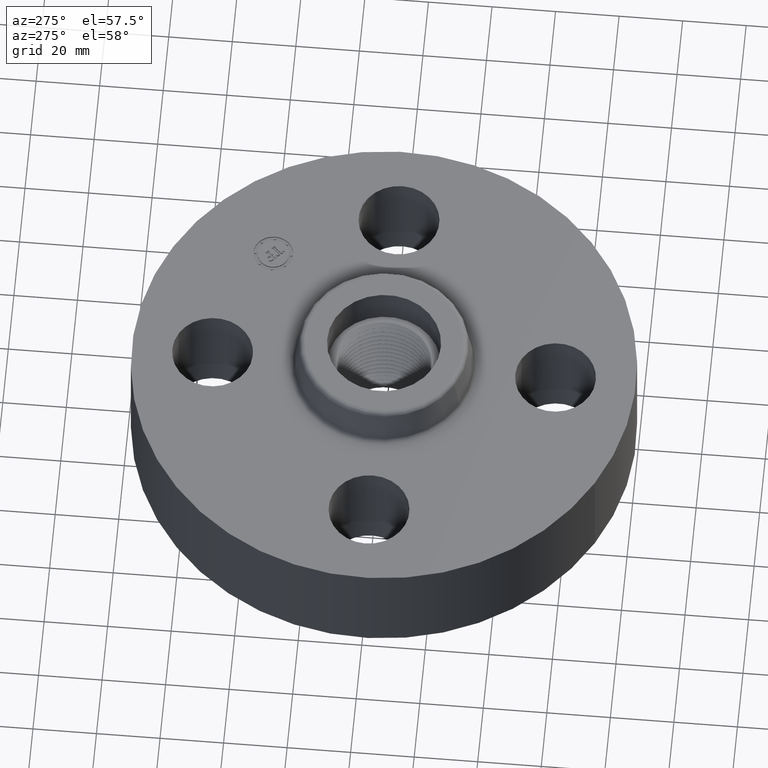
[diagram: clean part render]
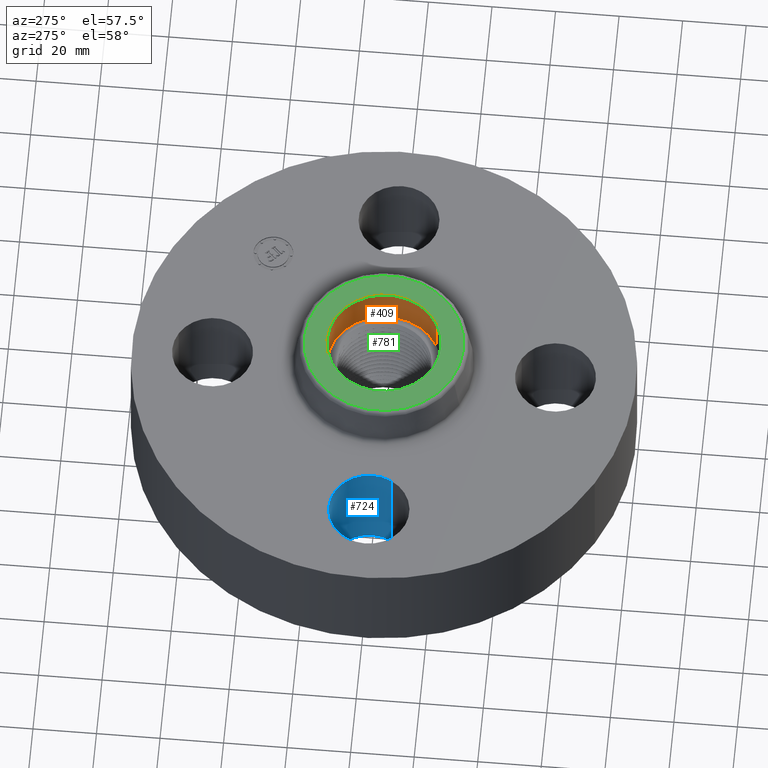
[diagram: same view with three faces highlighted in distinct colors, each labeled with its STEP entity id]
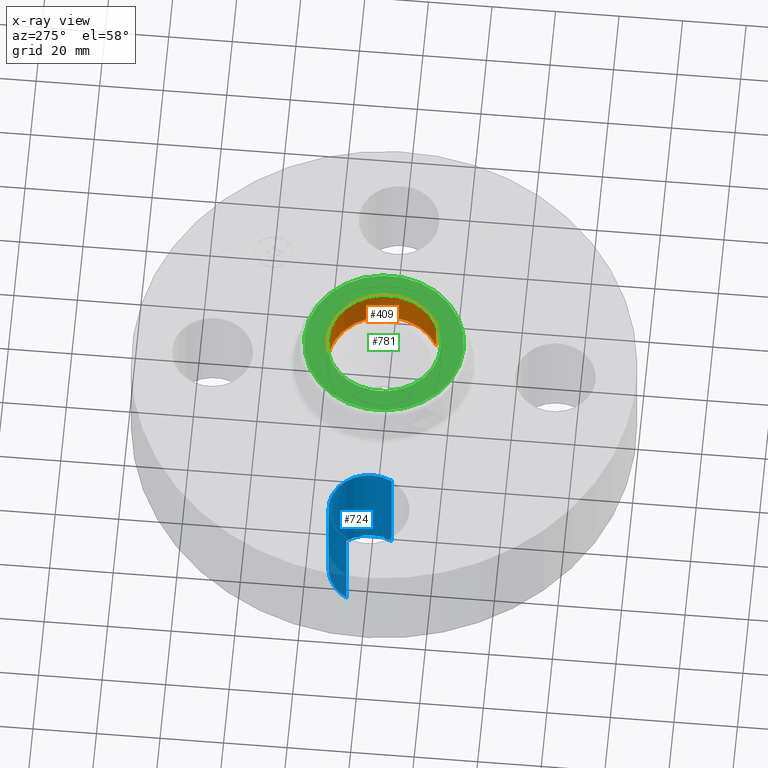
[diagram: x-ray of the same camera — body ghosted, the three highlighted faces saturated]
A machine part, auxiliary view with three faces highlighted in distinct colors.
The next image is the same camera in x-ray (body ghosted, the three faces saturated) — at least one of them is partly hidden behind the body in this view.
Their STEP definitions:

[orange] entity #409 — the highlighted cylindrical surface (partial cylindrical patch) has radius 17.907 mm, axis along (0, 0, 1).
#51=AXIS2_PLACEMENT_3D('Circle Axis2P3D',#49,#50,$) ;
#370=AXIS2_PLACEMENT_3D('Cylinder Axis2P3D',#367,#368,#369) ;
#400=AXIS2_PLACEMENT_3D('Circle Axis2P3D',#398,#399,$) ;
#44=CARTESIAN_POINT('Vertex',(-0.337995004717,0.618695706135,1.38000000001)) ;
#46=CARTESIAN_POINT('Vertex',(0.337995004717,-0.618695706135,1.38000000001)) ;
#49=CARTESIAN_POINT('Axis2P3D Location',(0.,0.,1.38000000001)) ;
#367=CARTESIAN_POINT('Axis2P3D Location',(0.,0.,1.38000000001)) ;
#376=CARTESIAN_POINT('Vertex',(0.337995004717,-0.618695706135,1.88000000001)) ;
#378=CARTESIAN_POINT('Vertex',(-0.337995004717,0.618695706135,1.88000000001)) ;
#381=CARTESIAN_POINT('Line Origine',(0.337995004717,-0.618695706135,1.63000000001)) ;
#386=CARTESIAN_POINT('Line Origine',(-0.337995004717,0.618695706135,1.63000000001)) ;
#398=CARTESIAN_POINT('Axis2P3D Location',(0.,0.,1.88000000001)) ;
#50=DIRECTION('Axis2P3D Direction',(0.,0.,-0.0393700787402)) ;
#368=DIRECTION('Axis2P3D Direction',(0.,0.,0.0393700787402)) ;
#369=DIRECTION('Axis2P3D XDirection',(0.0188750212049,-0.0345504945626,0.)) ;
#382=DIRECTION('Vector Direction',(0.,0.,0.0393700787402)) ;
#387=DIRECTION('Vector Direction',(0.,0.,0.0393700787402)) ;
#399=DIRECTION('Axis2P3D Direction',(0.,0.,0.0393700787402)) ;
#383=VECTOR('Line Direction',#382,0.0393700787402) ;
#388=VECTOR('Line Direction',#387,0.0393700787402) ;
#404=ORIENTED_EDGE('',*,*,#402,.F.) ;
#405=ORIENTED_EDGE('',*,*,#390,.F.) ;
#406=ORIENTED_EDGE('',*,*,#53,.F.) ;
#407=ORIENTED_EDGE('',*,*,#385,.T.) ;
#409=ADVANCED_FACE('PartBody',(#408),#371,.F.) ;
#52=CIRCLE('generated circle',#51,0.705000000003) ;
#401=CIRCLE('generated circle',#400,0.705000000003) ;
#371=CYLINDRICAL_SURFACE('generated cylinder',#370,0.705000000003) ;
#53=EDGE_CURVE('',#47,#45,#52,.F.) ;
#385=EDGE_CURVE('',#47,#377,#384,.T.) ;
#390=EDGE_CURVE('',#45,#379,#389,.T.) ;
#402=EDGE_CURVE('',#379,#377,#401,.F.) ;
#403=EDGE_LOOP('',(#404,#405,#406,#407)) ;
#408=FACE_OUTER_BOUND('',#403,.T.) ;
#384=LINE('Line',#381,#383) ;
#389=LINE('Line',#386,#388) ;
#45=VERTEX_POINT('',#44) ;
#47=VERTEX_POINT('',#46) ;
#377=VERTEX_POINT('',#376) ;
#379=VERTEX_POINT('',#378) ;

[blue] entity #724 — the highlighted cylindrical surface (partial cylindrical patch) has radius 12.7 mm, axis along (-0, 0, -1).
#341=AXIS2_PLACEMENT_3D('Circle Axis2P3D',#339,#340,$) ;
#685=AXIS2_PLACEMENT_3D('Cylinder Axis2P3D',#682,#683,#684) ;
#715=AXIS2_PLACEMENT_3D('Circle Axis2P3D',#713,#714,$) ;
#334=CARTESIAN_POINT('Vertex',(-1.68620871906,-0.239712769303,0.)) ;
#336=CARTESIAN_POINT('Vertex',(-2.56379128096,0.239712769303,0.)) ;
#339=CARTESIAN_POINT('Axis2P3D Location',(-2.12500000001,-2.09805925913E-016,0.)) ;
#682=CARTESIAN_POINT('Axis2P3D Location',(-2.12500000001,-2.6023744482E-016,1.37606299213)) ;
#687=CARTESIAN_POINT('Line Origine',(-1.68620871906,-0.239712769303,0.690000000003)) ;
#691=CARTESIAN_POINT('Vertex',(-1.68620871906,-0.239712769303,1.38000000001)) ;
#694=CARTESIAN_POINT('Line Origine',(-2.56379128096,0.239712769303,0.690000000003)) ;
#698=CARTESIAN_POINT('Vertex',(-2.56379128096,0.239712769303,1.38000000001)) ;
#713=CARTESIAN_POINT('Axis2P3D Location',(-2.12500000001,-2.6023744482E-016,1.38000000001)) ;
#340=DIRECTION('Axis2P3D Direction',(0.,0.,-0.0393700787402)) ;
#683=DIRECTION('Axis2P3D Direction',(-0.,0.,-0.0393700787402)) ;
#684=DIRECTION('Axis2P3D XDirection',(-0.0345504945626,0.0188750212049,0.)) ;
#688=DIRECTION('Vector Direction',(0.,0.,-0.0393700787402)) ;
#695=DIRECTION('Vector Direction',(0.,0.,-0.0393700787402)) ;
#714=DIRECTION('Axis2P3D Direction',(-0.,0.,-0.0393700787402)) ;
#689=VECTOR('Line Direction',#688,0.0393700787402) ;
#696=VECTOR('Line Direction',#695,0.0393700787402) ;
#719=ORIENTED_EDGE('',*,*,#700,.F.) ;
#720=ORIENTED_EDGE('',*,*,#343,.T.) ;
#721=ORIENTED_EDGE('',*,*,#693,.T.) ;
#722=ORIENTED_EDGE('',*,*,#717,.F.) ;
#724=ADVANCED_FACE('PartBody',(#723),#686,.F.) ;
#342=CIRCLE('generated circle',#341,0.500000000002) ;
#716=CIRCLE('generated circle',#715,0.500000000002) ;
#686=CYLINDRICAL_SURFACE('generated cylinder',#685,0.500000000002) ;
#343=EDGE_CURVE('',#337,#335,#342,.T.) ;
#693=EDGE_CURVE('',#335,#692,#690,.F.) ;
#700=EDGE_CURVE('',#337,#699,#697,.F.) ;
#717=EDGE_CURVE('',#699,#692,#716,.T.) ;
#718=EDGE_LOOP('',(#719,#720,#721,#722)) ;
#723=FACE_OUTER_BOUND('',#718,.T.) ;
#690=LINE('Line',#687,#689) ;
#697=LINE('Line',#694,#696) ;
#335=VERTEX_POINT('',#334) ;
#337=VERTEX_POINT('',#336) ;
#692=VERTEX_POINT('',#691) ;
#699=VERTEX_POINT('',#698) ;

[green] entity #781 — the highlighted planar face has unit normal (0, 0, -1).
#374=AXIS2_PLACEMENT_3D('Circle Axis2P3D',#372,#373,$) ;
#400=AXIS2_PLACEMENT_3D('Circle Axis2P3D',#398,#399,$) ;
#610=AXIS2_PLACEMENT_3D('Circle Axis2P3D',#608,#609,$) ;
#629=AXIS2_PLACEMENT_3D('Circle Axis2P3D',#627,#628,$) ;
#771=AXIS2_PLACEMENT_3D('Plane Axis2P3D',#768,#769,#770) ;
#372=CARTESIAN_POINT('Axis2P3D Location',(0.,0.,1.88000000001)) ;
#376=CARTESIAN_POINT('Vertex',(0.337995004717,-0.618695706135,1.88000000001)) ;
#378=CARTESIAN_POINT('Vertex',(-0.337995004717,0.618695706135,1.88000000001)) ;
#398=CARTESIAN_POINT('Axis2P3D Location',(0.,0.,1.88000000001)) ;
#605=CARTESIAN_POINT('Vertex',(0.472948754526,0.865726888159,1.88000000001)) ;
#608=CARTESIAN_POINT('Axis2P3D Location',(0.,0.,1.88000000001)) ;
#612=CARTESIAN_POINT('Vertex',(-0.472948754526,-0.865726888159,1.88000000001)) ;
#627=CARTESIAN_POINT('Axis2P3D Location',(0.,0.,1.88000000001)) ;
#768=CARTESIAN_POINT('Axis2P3D Location',(0.,0.986490531779,1.88000000001)) ;
#373=DIRECTION('Axis2P3D Direction',(0.,0.,0.0393700787402)) ;
#399=DIRECTION('Axis2P3D Direction',(0.,0.,0.0393700787402)) ;
#609=DIRECTION('Axis2P3D Direction',(0.,0.,-0.0393700787402)) ;
#628=DIRECTION('Axis2P3D Direction',(0.,0.,-0.0393700787402)) ;
#769=DIRECTION('Axis2P3D Direction',(0.,0.,-0.0393700787402)) ;
#770=DIRECTION('Axis2P3D XDirection',(0.0393700787402,0.,0.)) ;
#774=ORIENTED_EDGE('',*,*,#614,.F.) ;
#775=ORIENTED_EDGE('',*,*,#631,.F.) ;
#778=ORIENTED_EDGE('',*,*,#402,.T.) ;
#779=ORIENTED_EDGE('',*,*,#380,.T.) ;
#780=FACE_BOUND('',#777,.T.) ;
#781=ADVANCED_FACE('PartBody',(#776,#780),#772,.F.) ;
#375=CIRCLE('generated circle',#374,0.705000000003) ;
#401=CIRCLE('generated circle',#400,0.705000000003) ;
#611=CIRCLE('generated circle',#610,0.986490531779) ;
#630=CIRCLE('generated circle',#629,0.986490531779) ;
#380=EDGE_CURVE('',#377,#379,#375,.F.) ;
#402=EDGE_CURVE('',#379,#377,#401,.F.) ;
#614=EDGE_CURVE('',#606,#613,#611,.T.) ;
#631=EDGE_CURVE('',#613,#606,#630,.T.) ;
#773=EDGE_LOOP('',(#774,#775)) ;
#777=EDGE_LOOP('',(#778,#779)) ;
#776=FACE_OUTER_BOUND('',#773,.T.) ;
#772=PLANE('',#771) ;
#377=VERTEX_POINT('',#376) ;
#379=VERTEX_POINT('',#378) ;
#606=VERTEX_POINT('',#605) ;
#613=VERTEX_POINT('',#612) ;